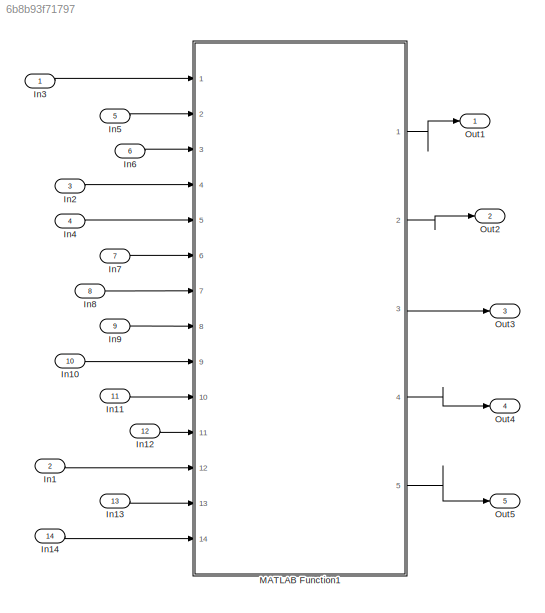
MODEL slx_6b8b93f71797
KIND model
CONFIG AbsTol = auto
CONFIG EnableMultiTasking = off
CONFIG FixedStep = auto
CONFIG MaxStep = auto
CONFIG MinStep = auto
CONFIG RelTol = 1e-3
CONFIG SampleTimeConstraint = Unconstrained
CONFIG Solver = VariableStepAuto
CONFIG SolverName = VariableStepAuto
CONFIG StartTime = 0.0
CONFIG StopTime = 10.0
BLOCK [Inport] In1
  IconDisplay = Port number
  OutDataTypeStr = double
  Port = 2
  PortDimensions = 4
BLOCK [Inport] In10
  IconDisplay = Port number
  OutDataTypeStr = double
  Port = 10
  PortDimensions = 1
BLOCK [Inport] In11
  IconDisplay = Port number
  OutDataTypeStr = double
  Port = 11
  PortDimensions = 1
BLOCK [Inport] In12
  IconDisplay = Port number
  OutDataTypeStr = double
  Port = 12
  PortDimensions = 1
BLOCK [Inport] In13
  IconDisplay = Port number
  OutDataTypeStr = double
  Port = 13
  PortDimensions = 3
BLOCK [Inport] In14
  IconDisplay = Port number
  OutDataTypeStr = double
  Port = 14
  PortDimensions = [6,6]
BLOCK [Inport] In2
  IconDisplay = Port number
  OutDataTypeStr = double
  Port = 3
  PortDimensions = 1
BLOCK [Inport] In3
  IconDisplay = Port number
  OutDataTypeStr = double
  PortDimensions = 4
BLOCK [Inport] In4
  IconDisplay = Port number
  OutDataTypeStr = double
  Port = 4
  PortDimensions = 1
BLOCK [Inport] In5
  IconDisplay = Port number
  OutDataTypeStr = double
  Port = 5
  PortDimensions = 3
BLOCK [Inport] In6
  IconDisplay = Port number
  OutDataTypeStr = double
  Port = 6
  PortDimensions = 3
BLOCK [Inport] In7
  IconDisplay = Port number
  OutDataTypeStr = double
  Port = 7
  PortDimensions = 3
BLOCK [Inport] In8
  IconDisplay = Port number
  OutDataTypeStr = double
  Port = 8
  PortDimensions = 1
BLOCK [Inport] In9
  IconDisplay = Port number
  OutDataTypeStr = double
  Port = 9
  PortDimensions = 1
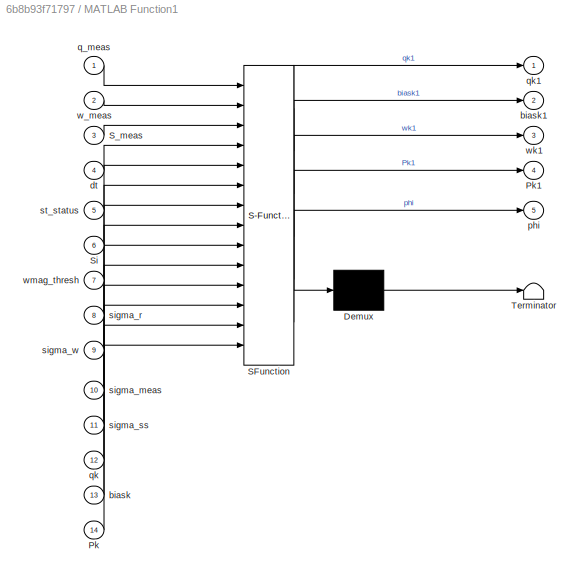
BLOCK [SubSystem] MATLAB Function1
  ErrorFcn = Stateflow.Translate.translate
  PermitHierarchicalResolution = ExplicitOnly
  Ports = [14, 5]
  RequestExecContextInheritance = off
  SFBlockType = MATLAB Function
  TreatAsAtomicUnit = on
  Variant = off
BLOCK [Demux] MATLAB Function1/ Demux 
  Outputs = 1
  Ports = [1, 1]
BLOCK [S-Function] MATLAB Function1/ SFunction 
  EnableBusSupport = off
  FunctionName = sf_sfun
  PortCounts = [14 6]
  Ports = [14, 6]
  SFcnIsStateOwnerBlock = off
  SFunctionDeploymentMode = off
  Tag = Stateflow S-Function bio_matfunc_EKF_with_sun 2
BLOCK [Terminator] MATLAB Function1/ Terminator 
BLOCK [Inport] MATLAB Function1/Pk
  IconDisplay = Port number
  Port = 14
BLOCK [Outport] MATLAB Function1/Pk1
  IconDisplay = Port number
  Port = 4
BLOCK [Inport] MATLAB Function1/S_meas
  IconDisplay = Port number
  Port = 3
BLOCK [Inport] MATLAB Function1/Si
  IconDisplay = Port number
  Port = 6
BLOCK [Inport] MATLAB Function1/biask
  IconDisplay = Port number
  Port = 13
BLOCK [Outport] MATLAB Function1/biask1
  IconDisplay = Port number
  Port = 2
BLOCK [Inport] MATLAB Function1/dt
  IconDisplay = Port number
  Port = 4
BLOCK [Outport] MATLAB Function1/phi
  IconDisplay = Port number
  Port = 5
BLOCK [Inport] MATLAB Function1/q_meas
  IconDisplay = Port number
BLOCK [Inport] MATLAB Function1/qk
  IconDisplay = Port number
  Port = 12
BLOCK [Outport] MATLAB Function1/qk1
  IconDisplay = Port number
BLOCK [Inport] MATLAB Function1/sigma_meas
  IconDisplay = Port number
  Port = 10
BLOCK [Inport] MATLAB Function1/sigma_r
  IconDisplay = Port number
  Port = 8
BLOCK [Inport] MATLAB Function1/sigma_ss
  IconDisplay = Port number
  Port = 11
BLOCK [Inport] MATLAB Function1/sigma_w
  IconDisplay = Port number
  Port = 9
BLOCK [Inport] MATLAB Function1/st_status
  IconDisplay = Port number
  Port = 5
BLOCK [Inport] MATLAB Function1/w_meas
  IconDisplay = Port number
  Port = 2
BLOCK [Outport] MATLAB Function1/wk1
  IconDisplay = Port number
  Port = 3
BLOCK [Inport] MATLAB Function1/wmag_thresh
  IconDisplay = Port number
  Port = 7
BLOCK [Outport] Out1
  IconDisplay = Port number
BLOCK [Outport] Out2
  IconDisplay = Port number
  Port = 2
BLOCK [Outport] Out3
  IconDisplay = Port number
  Port = 3
BLOCK [Outport] Out4
  IconDisplay = Port number
  Port = 4
BLOCK [Outport] Out5
  IconDisplay = Port number
  Port = 5
LINE In10:1 -> MATLAB Function1:9
LINE In11:1 -> MATLAB Function1:10
LINE In12:1 -> MATLAB Function1:11
LINE In13:1 -> MATLAB Function1:13
LINE In14:1 -> MATLAB Function1:14
LINE In1:1 -> MATLAB Function1:12
LINE In2:1 -> MATLAB Function1:4
LINE In3:1 -> MATLAB Function1:1
LINE In4:1 -> MATLAB Function1:5
LINE In5:1 -> MATLAB Function1:2
LINE In6:1 -> MATLAB Function1:3
LINE In7:1 -> MATLAB Function1:6
LINE In8:1 -> MATLAB Function1:7
LINE In9:1 -> MATLAB Function1:8
LINE MATLAB Function1:1 -> Out1:1
LINE MATLAB Function1:2 -> Out2:1
LINE MATLAB Function1:3 -> Out3:1
LINE MATLAB Function1:4 -> Out4:1
LINE MATLAB Function1:5 -> Out5:1
CHART MATLAB Function1 states=1 transitions=1
  STATE_LABEL 'eML_blk_kernel()'
  STATE_LABEL 'SCRIPT:\nfunction [qk1, biask1, wk1, Pk1, phi] = EKF_with_sun(q_meas,w_meas,S_meas,dt,st_status,Si,wmag_thresh,sigma_r,sigma_w,sigma_meas,sigma_ss,qk,biask,Pk)\n%#codegen\n\n%propagate state (1)\nw = w_meas - biask; %biask = biask1 before correction because bias is assumed constant over the interval\n\nwmag = norm(w);\n\n%qk1 = expm(dt/2*Omega(w))*qk;\n\n%0th order\nif wmag > wmag_thresh;\n    qk1 = (eye(4)*co...<+2360ch>'
